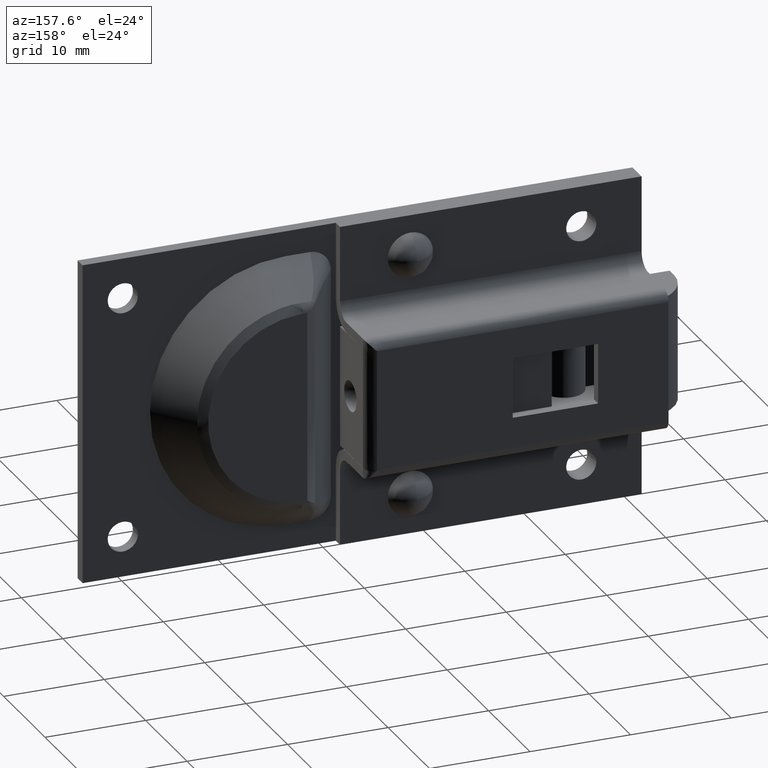
[diagram: clean part render]
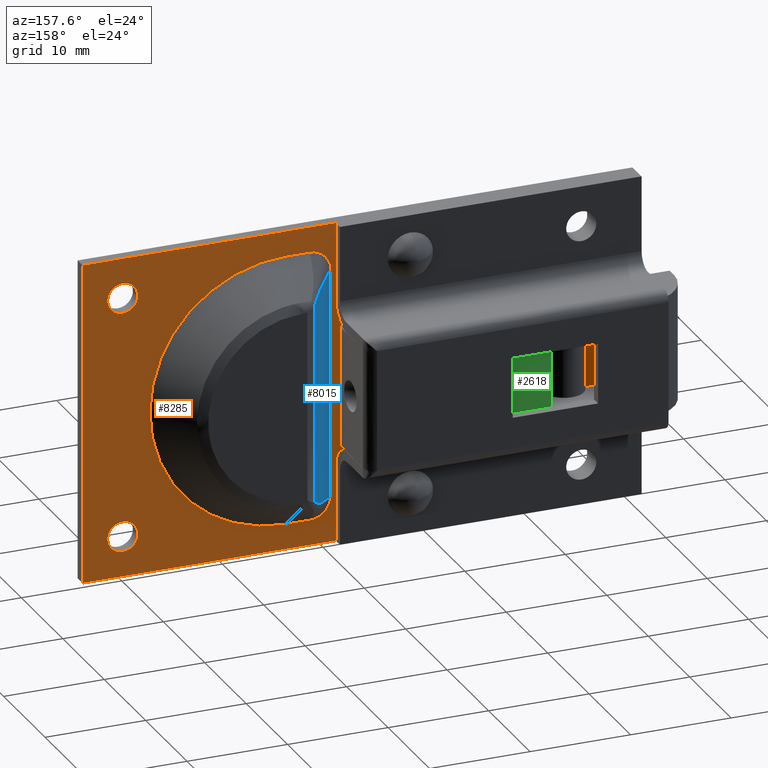
[diagram: same view with three faces highlighted in distinct colors, each labeled with its STEP entity id]
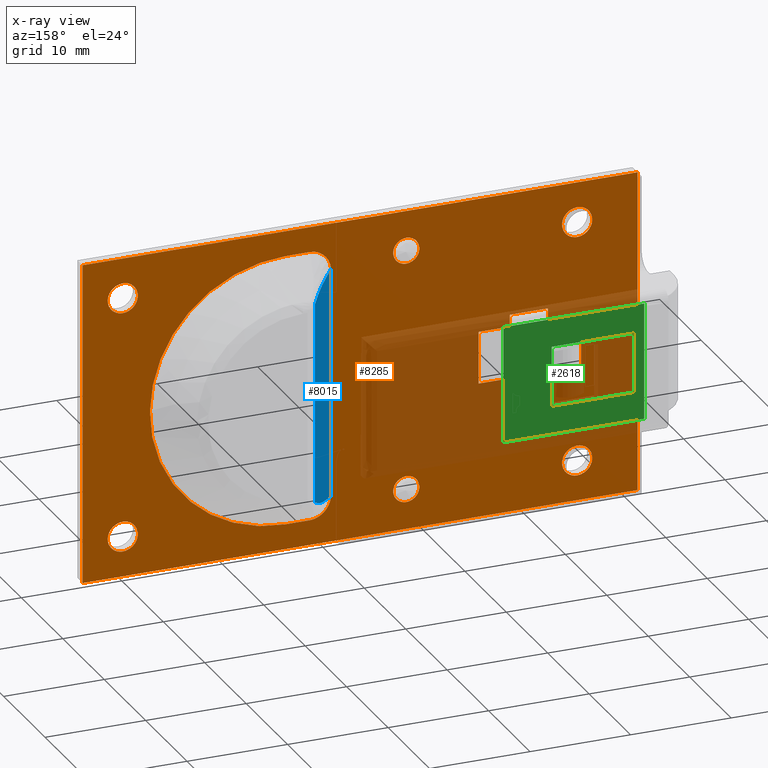
[diagram: x-ray of the same camera — body ghosted, the three highlighted faces saturated]
A machine part, auxiliary view with three faces highlighted in distinct colors.
The next image is the same camera in x-ray (body ghosted, the three faces saturated) — at least one of them is partly hidden behind the body in this view.
Their STEP definitions:

[orange] entity #8285 — the highlighted face is a freeform B-spline surface patch.
#4812=CARTESIAN_POINT('',(10.904065466151570,1.199997000000064,11.898003175494850));
#4813=VERTEX_POINT('',#4812);
#4819=CARTESIAN_POINT('',(12.200058000000000,1.199997000000064,13.300000000000001));
#4820=VERTEX_POINT('',#4819);
#4821=CARTESIAN_POINT('',(10.904065466151577,1.199997000000064,11.898003175494852));
#4822=CARTESIAN_POINT('',(10.900058000000003,1.199997000000064,11.948922860830809));
#4823=CARTESIAN_POINT('',(10.900058000000000,1.199997000000064,12.0));
#4824=CARTESIAN_POINT('',(10.900058000000001,1.199997000000064,13.299999999999997));
#4825=CARTESIAN_POINT('',(12.200058000000000,1.199997000000064,13.300000000000001));
#4833=(BOUNDED_CURVE()B_SPLINE_CURVE(2,(#4821,#4822,#4823,#4824,#4825),.UNSPECIFIED.,.F.,.U.)B_SPLINE_CURVE_WITH_KNOTS((3,2,3),(0.736331300617172,0.750000000000000,1.0),.UNSPECIFIED.)CURVE()GEOMETRIC_REPRESENTATION_ITEM()RATIONAL_B_SPLINE_CURVE((0.969723356139271,0.983986122563081,1.0,0.707106781186548,1.0))REPRESENTATION_ITEM(''));
#4834=EDGE_CURVE('',#4813,#4820,#4833,.T.);
#4836=CARTESIAN_POINT('',(13.496050533848431,1.199997000000064,12.101996824505150));
#4837=VERTEX_POINT('',#4836);
#4838=CARTESIAN_POINT('',(12.200058000000000,1.199997000000064,13.300000000000001));
#4839=CARTESIAN_POINT('',(13.401765639046010,1.199997000000064,13.299999999999999));
#4840=CARTESIAN_POINT('',(13.496050533848431,1.199997000000064,12.101996824505145));
#4848=(BOUNDED_CURVE()B_SPLINE_CURVE(2,(#4838,#4839,#4840),.UNSPECIFIED.,.F.,.U.)B_SPLINE_CURVE_WITH_KNOTS((3,3),(0.0,0.236331300617172),.UNSPECIFIED.)CURVE()GEOMETRIC_REPRESENTATION_ITEM()RATIONAL_B_SPLINE_CURVE((1.0,0.723120658623467,0.969723356139270))REPRESENTATION_ITEM(''));
#4849=EDGE_CURVE('',#4820,#4837,#4848,.T.);
#4895=CARTESIAN_POINT('',(12.200058000000000,1.199997000000064,10.699999999999999));
#4896=VERTEX_POINT('',#4895);
#4897=CARTESIAN_POINT('',(13.496050533848429,1.199997000000064,12.101996824505154));
#4898=CARTESIAN_POINT('',(13.500057999999996,1.199997000000064,12.051077139169189));
#4899=CARTESIAN_POINT('',(13.500057999999999,1.199997000000064,12.0));
#4900=CARTESIAN_POINT('',(13.500058000000001,1.199997000000064,10.700000000000001));
#4901=CARTESIAN_POINT('',(12.200058000000000,1.199997000000064,10.699999999999999));
#4909=(BOUNDED_CURVE()B_SPLINE_CURVE(2,(#4897,#4898,#4899,#4900,#4901),.UNSPECIFIED.,.F.,.U.)B_SPLINE_CURVE_WITH_KNOTS((3,2,3),(0.236331300617172,0.250000000000000,0.500000000000000),.UNSPECIFIED.)CURVE()GEOMETRIC_REPRESENTATION_ITEM()RATIONAL_B_SPLINE_CURVE((0.969723356139270,0.983986122563080,1.0,0.707106781186548,1.0))REPRESENTATION_ITEM(''));
#4910=EDGE_CURVE('',#4837,#4896,#4909,.T.);
#4912=CARTESIAN_POINT('',(12.200058000000000,1.199997000000064,10.699999999999999));
#4913=CARTESIAN_POINT('',(10.998350360953994,1.199997000000064,10.699999999999999));
#4914=CARTESIAN_POINT('',(10.904065466151577,1.199997000000064,11.898003175494852));
#4922=(BOUNDED_CURVE()B_SPLINE_CURVE(2,(#4912,#4913,#4914),.UNSPECIFIED.,.F.,.U.)B_SPLINE_CURVE_WITH_KNOTS((3,3),(0.500000000000000,0.736331300617172),.UNSPECIFIED.)CURVE()GEOMETRIC_REPRESENTATION_ITEM()RATIONAL_B_SPLINE_CURVE((1.0,0.723120658623468,0.969723356139270))REPRESENTATION_ITEM(''));
#4923=EDGE_CURVE('',#4896,#4813,#4922,.T.);
#4994=CARTESIAN_POINT('',(-6.295364000581541,1.199997000000064,11.882311356178880));
#4995=VERTEX_POINT('',#4994);
#5001=CARTESIAN_POINT('',(-4.799987999999900,1.199997000000064,13.500000000000000));
#5002=VERTEX_POINT('',#5001);
#5003=CARTESIAN_POINT('',(-6.295364000581541,1.199997000000064,11.882311356178885));
#5004=CARTESIAN_POINT('',(-6.299987999999901,1.199997000000064,11.941064839258079));
#5005=CARTESIAN_POINT('',(-6.299987999999900,1.199997000000064,12.0));
#5006=CARTESIAN_POINT('',(-6.299987999999900,1.199997000000064,13.500000000000000));
#5007=CARTESIAN_POINT('',(-4.799987999999900,1.199997000000064,13.500000000000000));
#5015=(BOUNDED_CURVE()B_SPLINE_CURVE(2,(#5003,#5004,#5005,#5006,#5007),.UNSPECIFIED.,.F.,.U.)B_SPLINE_CURVE_WITH_KNOTS((3,2,3),(0.736331300580183,0.750000000000000,1.0),.UNSPECIFIED.)CURVE()GEOMETRIC_REPRESENTATION_ITEM()RATIONAL_B_SPLINE_CURVE((0.969723356062077,0.983986122519745,1.0,0.707106781186548,1.0))REPRESENTATION_ITEM(''));
#5016=EDGE_CURVE('',#4995,#5002,#5015,.T.);
#5018=CARTESIAN_POINT('',(-3.304611999418259,1.199997000000064,12.117688643821120));
#5019=VERTEX_POINT('',#5018);
#5020=CARTESIAN_POINT('',(-4.799987999999900,1.199997000000064,13.500000000000000));
#5021=CARTESIAN_POINT('',(-3.413402262939234,1.199997000000064,13.500000000000000));
#5022=CARTESIAN_POINT('',(-3.304611999418259,1.199997000000064,12.117688643821115));
#5030=(BOUNDED_CURVE()B_SPLINE_CURVE(2,(#5020,#5021,#5022),.UNSPECIFIED.,.F.,.U.)B_SPLINE_CURVE_WITH_KNOTS((3,3),(0.0,0.236331300580183),.UNSPECIFIED.)CURVE()GEOMETRIC_REPRESENTATION_ITEM()RATIONAL_B_SPLINE_CURVE((1.0,0.723120658666803,0.969723356062077))REPRESENTATION_ITEM(''));
#5031=EDGE_CURVE('',#5002,#5019,#5030,.T.);
#5077=CARTESIAN_POINT('',(-4.799987999999900,1.199997000000064,10.500000000000000));
#5078=VERTEX_POINT('',#5077);
#5079=CARTESIAN_POINT('',(-3.304611999418259,1.199997000000064,12.117688643821115));
#5080=CARTESIAN_POINT('',(-3.299987999999900,1.199997000000064,12.058935160741921));
#5081=CARTESIAN_POINT('',(-3.299987999999900,1.199997000000064,12.0));
#5082=CARTESIAN_POINT('',(-3.299987999999900,1.199997000000064,10.500000000000002));
#5083=CARTESIAN_POINT('',(-4.799987999999900,1.199997000000064,10.500000000000000));
#5091=(BOUNDED_CURVE()B_SPLINE_CURVE(2,(#5079,#5080,#5081,#5082,#5083),.UNSPECIFIED.,.F.,.U.)B_SPLINE_CURVE_WITH_KNOTS((3,2,3),(0.236331300580183,0.250000000000000,0.500000000000000),.UNSPECIFIED.)CURVE()GEOMETRIC_REPRESENTATION_ITEM()RATIONAL_B_SPLINE_CURVE((0.969723356062077,0.983986122519745,1.0,0.707106781186548,1.0))REPRESENTATION_ITEM(''));
#5092=EDGE_CURVE('',#5019,#5078,#5091,.T.);
#5094=CARTESIAN_POINT('',(-4.799987999999900,1.199997000000064,10.500000000000000));
#5095=CARTESIAN_POINT('',(-6.186573737060571,1.199997000000064,10.499999999999998));
#5096=CARTESIAN_POINT('',(-6.295364000581541,1.199997000000064,11.882311356178880));
#5104=(BOUNDED_CURVE()B_SPLINE_CURVE(2,(#5094,#5095,#5096),.UNSPECIFIED.,.F.,.U.)B_SPLINE_CURVE_WITH_KNOTS((3,3),(0.500000000000000,0.736331300580184),.UNSPECIFIED.)CURVE()GEOMETRIC_REPRESENTATION_ITEM()RATIONAL_B_SPLINE_CURVE((1.0,0.723120658666802,0.969723356062078))REPRESENTATION_ITEM(''));
#5105=EDGE_CURVE('',#5078,#4995,#5104,.T.);
#5176=CARTESIAN_POINT('',(38.904632999418453,1.199997000000064,11.882311356178880));
#5177=VERTEX_POINT('',#5176);
#5183=CARTESIAN_POINT('',(40.400009000000097,1.199997000000064,13.500000000000000));
#5184=VERTEX_POINT('',#5183);
#5185=CARTESIAN_POINT('',(38.904632999418453,1.199997000000064,11.882311356178878));
#5186=CARTESIAN_POINT('',(38.900009000000104,1.199997000000064,11.941064839258081));
#5187=CARTESIAN_POINT('',(38.900009000000097,1.199997000000064,12.0));
#5188=CARTESIAN_POINT('',(38.900009000000097,1.199997000000064,13.500000000000000));
#5189=CARTESIAN_POINT('',(40.400009000000097,1.199997000000064,13.500000000000000));
#5197=(BOUNDED_CURVE()B_SPLINE_CURVE(2,(#5185,#5186,#5187,#5188,#5189),.UNSPECIFIED.,.F.,.U.)B_SPLINE_CURVE_WITH_KNOTS((3,2,3),(0.736331300580183,0.750000000000000,1.0),.UNSPECIFIED.)CURVE()GEOMETRIC_REPRESENTATION_ITEM()RATIONAL_B_SPLINE_CURVE((0.969723356062077,0.983986122519745,1.0,0.707106781186548,1.0))REPRESENTATION_ITEM(''));
#5198=EDGE_CURVE('',#5177,#5184,#5197,.T.);
#5200=CARTESIAN_POINT('',(41.895385000581740,1.199997000000064,12.117688643821120));
#5201=VERTEX_POINT('',#5200);
#5202=CARTESIAN_POINT('',(40.400009000000097,1.199997000000064,13.500000000000000));
#5203=CARTESIAN_POINT('',(41.786594737060767,1.199997000000064,13.500000000000000));
#5204=CARTESIAN_POINT('',(41.895385000581747,1.199997000000064,12.117688643821122));
#5212=(BOUNDED_CURVE()B_SPLINE_CURVE(2,(#5202,#5203,#5204),.UNSPECIFIED.,.F.,.U.)B_SPLINE_CURVE_WITH_KNOTS((3,3),(0.0,0.236331300580183),.UNSPECIFIED.)CURVE()GEOMETRIC_REPRESENTATION_ITEM()RATIONAL_B_SPLINE_CURVE((1.0,0.723120658666802,0.969723356062077))REPRESENTATION_ITEM(''));
#5213=EDGE_CURVE('',#5184,#5201,#5212,.T.);
#5259=CARTESIAN_POINT('',(40.400009000000097,1.199997000000064,10.500000000000000));
#5260=VERTEX_POINT('',#5259);
#5261=CARTESIAN_POINT('',(41.895385000581747,1.199997000000064,12.117688643821122));
#5262=CARTESIAN_POINT('',(41.900009000000097,1.199997000000064,12.058935160741919));
#5263=CARTESIAN_POINT('',(41.900009000000097,1.199997000000064,12.0));
#5264=CARTESIAN_POINT('',(41.900009000000097,1.199997000000064,10.500000000000002));
#5265=CARTESIAN_POINT('',(40.400009000000097,1.199997000000064,10.500000000000000));
#5273=(BOUNDED_CURVE()B_SPLINE_CURVE(2,(#5261,#5262,#5263,#5264,#5265),.UNSPECIFIED.,.F.,.U.)B_SPLINE_CURVE_WITH_KNOTS((3,2,3),(0.236331300580183,0.250000000000000,0.500000000000000),.UNSPECIFIED.)CURVE()GEOMETRIC_REPRESENTATION_ITEM()RATIONAL_B_SPLINE_CURVE((0.969723356062077,0.983986122519745,1.0,0.707106781186548,1.0))REPRESENTATION_ITEM(''));
#5274=EDGE_CURVE('',#5201,#5260,#5273,.T.);
#5276=CARTESIAN_POINT('',(40.400009000000097,1.199997000000064,10.500000000000000));
#5277=CARTESIAN_POINT('',(39.013423262939419,1.199997000000064,10.499999999999998));
#5278=CARTESIAN_POINT('',(38.904632999418453,1.199997000000064,11.882311356178880));
#5286=(BOUNDED_CURVE()B_SPLINE_CURVE(2,(#5276,#5277,#5278),.UNSPECIFIED.,.F.,.U.)B_SPLINE_CURVE_WITH_KNOTS((3,3),(0.500000000000000,0.736331300580184),.UNSPECIFIED.)CURVE()GEOMETRIC_REPRESENTATION_ITEM()RATIONAL_B_SPLINE_CURVE((1.0,0.723120658666802,0.969723356062078))REPRESENTATION_ITEM(''));
#5287=EDGE_CURVE('',#5260,#5177,#5286,.T.);
#5358=CARTESIAN_POINT('',(38.904632999418453,1.199997000000064,-12.117688643821120));
#5359=VERTEX_POINT('',#5358);
#5365=CARTESIAN_POINT('',(40.400009000000097,1.199997000000064,-10.500000000000000));
#5366=VERTEX_POINT('',#5365);
#5367=CARTESIAN_POINT('',(38.904632999418453,1.199997000000064,-12.117688643821117));
#5368=CARTESIAN_POINT('',(38.900009000000104,1.199997000000064,-12.058935160741921));
#5369=CARTESIAN_POINT('',(38.900009000000097,1.199997000000064,-12.0));
#5370=CARTESIAN_POINT('',(38.900009000000097,1.199997000000064,-10.500000000000002));
#5371=CARTESIAN_POINT('',(40.400009000000097,1.199997000000064,-10.500000000000000));
#5379=(BOUNDED_CURVE()B_SPLINE_CURVE(2,(#5367,#5368,#5369,#5370,#5371),.UNSPECIFIED.,.F.,.U.)B_SPLINE_CURVE_WITH_KNOTS((3,2,3),(0.736331300580183,0.750000000000000,1.0),.UNSPECIFIED.)CURVE()GEOMETRIC_REPRESENTATION_ITEM()RATIONAL_B_SPLINE_CURVE((0.969723356062077,0.983986122519745,1.0,0.707106781186548,1.0))REPRESENTATION_ITEM(''));
#5380=EDGE_CURVE('',#5359,#5366,#5379,.T.);
#5382=CARTESIAN_POINT('',(41.895385000581740,1.199997000000064,-11.882311356178880));
#5383=VERTEX_POINT('',#5382);
#5384=CARTESIAN_POINT('',(40.400009000000097,1.199997000000064,-10.500000000000000));
#5385=CARTESIAN_POINT('',(41.786594737060760,1.199997000000064,-10.500000000000000));
#5386=CARTESIAN_POINT('',(41.895385000581740,1.199997000000064,-11.882311356178885));
#5394=(BOUNDED_CURVE()B_SPLINE_CURVE(2,(#5384,#5385,#5386),.UNSPECIFIED.,.F.,.U.)B_SPLINE_CURVE_WITH_KNOTS((3,3),(0.0,0.236331300580183),.UNSPECIFIED.)CURVE()GEOMETRIC_REPRESENTATION_ITEM()RATIONAL_B_SPLINE_CURVE((1.0,0.723120658666803,0.969723356062076))REPRESENTATION_ITEM(''));
#5395=EDGE_CURVE('',#5366,#5383,#5394,.T.);
#5441=CARTESIAN_POINT('',(40.400009000000097,1.199997000000064,-13.500000000000000));
#5442=VERTEX_POINT('',#5441);
#5443=CARTESIAN_POINT('',(41.895385000581740,1.199997000000064,-11.882311356178883));
#5444=CARTESIAN_POINT('',(41.900009000000090,1.199997000000064,-11.941064839258084));
#5445=CARTESIAN_POINT('',(41.900009000000097,1.199997000000064,-12.0));
#5446=CARTESIAN_POINT('',(41.900009000000097,1.199997000000064,-13.500000000000000));
#5447=CARTESIAN_POINT('',(40.400009000000097,1.199997000000064,-13.500000000000000));
#5455=(BOUNDED_CURVE()B_SPLINE_CURVE(2,(#5443,#5444,#5445,#5446,#5447),.UNSPECIFIED.,.F.,.U.)B_SPLINE_CURVE_WITH_KNOTS((3,2,3),(0.236331300580183,0.250000000000000,0.500000000000000),.UNSPECIFIED.)CURVE()GEOMETRIC_REPRESENTATION_ITEM()RATIONAL_B_SPLINE_CURVE((0.969723356062076,0.983986122519745,1.0,0.707106781186548,1.0))REPRESENTATION_ITEM(''));
#5456=EDGE_CURVE('',#5383,#5442,#5455,.T.);
#5458=CARTESIAN_POINT('',(40.400009000000097,1.199997000000064,-13.500000000000000));
#5459=CARTESIAN_POINT('',(39.013423262939419,1.199997000000064,-13.499999999999998));
#5460=CARTESIAN_POINT('',(38.904632999418453,1.199997000000064,-12.117688643821118));
#5468=(BOUNDED_CURVE()B_SPLINE_CURVE(2,(#5458,#5459,#5460),.UNSPECIFIED.,.F.,.U.)B_SPLINE_CURVE_WITH_KNOTS((3,3),(0.500000000000000,0.736331300580184),.UNSPECIFIED.)CURVE()GEOMETRIC_REPRESENTATION_ITEM()RATIONAL_B_SPLINE_CURVE((1.0,0.723120658666802,0.969723356062078))REPRESENTATION_ITEM(''));
#5469=EDGE_CURVE('',#5442,#5359,#5468,.T.);
#5540=CARTESIAN_POINT('',(10.904065466151570,1.199997000000064,-12.101996824505150));
#5541=VERTEX_POINT('',#5540);
#5547=CARTESIAN_POINT('',(12.200058000000000,1.199997000000064,-10.699999999999999));
#5548=VERTEX_POINT('',#5547);
#5549=CARTESIAN_POINT('',(10.904065466151573,1.199997000000064,-12.101996824505155));
#5550=CARTESIAN_POINT('',(10.900057999999998,1.199997000000064,-12.051077139169191));
#5551=CARTESIAN_POINT('',(10.900058000000000,1.199997000000064,-12.0));
#5552=CARTESIAN_POINT('',(10.900058000000001,1.199997000000064,-10.700000000000001));
#5553=CARTESIAN_POINT('',(12.200058000000000,1.199997000000064,-10.699999999999999));
#5561=(BOUNDED_CURVE()B_SPLINE_CURVE(2,(#5549,#5550,#5551,#5552,#5553),.UNSPECIFIED.,.F.,.U.)B_SPLINE_CURVE_WITH_KNOTS((3,2,3),(0.736331300617172,0.750000000000000,1.0),.UNSPECIFIED.)CURVE()GEOMETRIC_REPRESENTATION_ITEM()RATIONAL_B_SPLINE_CURVE((0.969723356139270,0.983986122563080,1.0,0.707106781186548,1.0))REPRESENTATION_ITEM(''));
#5562=EDGE_CURVE('',#5541,#5548,#5561,.T.);
#5564=CARTESIAN_POINT('',(13.496050533848431,1.199997000000064,-11.898003175494850));
#5565=VERTEX_POINT('',#5564);
#5566=CARTESIAN_POINT('',(12.200058000000000,1.199997000000064,-10.699999999999999));
#5567=CARTESIAN_POINT('',(13.401765639046012,1.199997000000064,-10.700000000000001));
#5568=CARTESIAN_POINT('',(13.496050533848432,1.199997000000064,-11.898003175494852));
#5576=(BOUNDED_CURVE()B_SPLINE_CURVE(2,(#5566,#5567,#5568),.UNSPECIFIED.,.F.,.U.)B_SPLINE_CURVE_WITH_KNOTS((3,3),(0.0,0.236331300617172),.UNSPECIFIED.)CURVE()GEOMETRIC_REPRESENTATION_ITEM()RATIONAL_B_SPLINE_CURVE((1.0,0.723120658623467,0.969723356139271))REPRESENTATION_ITEM(''));
#5577=EDGE_CURVE('',#5548,#5565,#5576,.T.);
#5623=CARTESIAN_POINT('',(12.200058000000000,1.199997000000064,-13.300000000000001));
#5624=VERTEX_POINT('',#5623);
#5625=CARTESIAN_POINT('',(13.496050533848425,1.199997000000064,-11.898003175494855));
#5626=CARTESIAN_POINT('',(13.500058000000005,1.199997000000064,-11.948922860830811));
#5627=CARTESIAN_POINT('',(13.500057999999999,1.199997000000064,-12.0));
#5628=CARTESIAN_POINT('',(13.500058000000001,1.199997000000064,-13.299999999999997));
#5629=CARTESIAN_POINT('',(12.200058000000000,1.199997000000064,-13.300000000000001));
#5637=(BOUNDED_CURVE()B_SPLINE_CURVE(2,(#5625,#5626,#5627,#5628,#5629),.UNSPECIFIED.,.F.,.U.)B_SPLINE_CURVE_WITH_KNOTS((3,2,3),(0.236331300617172,0.250000000000000,0.500000000000000),.UNSPECIFIED.)CURVE()GEOMETRIC_REPRESENTATION_ITEM()RATIONAL_B_SPLINE_CURVE((0.969723356139271,0.983986122563080,1.0,0.707106781186548,1.0))REPRESENTATION_ITEM(''));
#5638=EDGE_CURVE('',#5565,#5624,#5637,.T.);
#5640=CARTESIAN_POINT('',(12.200058000000000,1.199997000000064,-13.300000000000001));
#5641=CARTESIAN_POINT('',(10.998350360953994,1.199997000000064,-13.299999999999999));
#5642=CARTESIAN_POINT('',(10.904065466151577,1.199997000000064,-12.101996824505148));
#5650=(BOUNDED_CURVE()B_SPLINE_CURVE(2,(#5640,#5641,#5642),.UNSPECIFIED.,.F.,.U.)B_SPLINE_CURVE_WITH_KNOTS((3,3),(0.500000000000000,0.736331300617172),.UNSPECIFIED.)CURVE()GEOMETRIC_REPRESENTATION_ITEM()RATIONAL_B_SPLINE_CURVE((1.0,0.723120658623468,0.969723356139270))REPRESENTATION_ITEM(''));
#5651=EDGE_CURVE('',#5624,#5541,#5650,.T.);
#5722=CARTESIAN_POINT('',(-6.295364000581541,1.199997000000064,-12.117688643821120));
#5723=VERTEX_POINT('',#5722);
#5729=CARTESIAN_POINT('',(-4.799987999999900,1.199997000000064,-10.500000000000000));
#5730=VERTEX_POINT('',#5729);
#5731=CARTESIAN_POINT('',(-6.295364000581541,1.199997000000064,-12.117688643821115));
#5732=CARTESIAN_POINT('',(-6.299987999999900,1.199997000000064,-12.058935160741916));
#5733=CARTESIAN_POINT('',(-6.299987999999900,1.199997000000064,-12.0));
#5734=CARTESIAN_POINT('',(-6.299987999999900,1.199997000000064,-10.500000000000002));
#5735=CARTESIAN_POINT('',(-4.799987999999900,1.199997000000064,-10.500000000000000));
#5743=(BOUNDED_CURVE()B_SPLINE_CURVE(2,(#5731,#5732,#5733,#5734,#5735),.UNSPECIFIED.,.F.,.U.)B_SPLINE_CURVE_WITH_KNOTS((3,2,3),(0.736331300580183,0.750000000000000,1.0),.UNSPECIFIED.)CURVE()GEOMETRIC_REPRESENTATION_ITEM()RATIONAL_B_SPLINE_CURVE((0.969723356062078,0.983986122519745,1.0,0.707106781186548,1.0))REPRESENTATION_ITEM(''));
#5744=EDGE_CURVE('',#5723,#5730,#5743,.T.);
#5746=CARTESIAN_POINT('',(-3.304611999418259,1.199997000000064,-11.882311356178880));
#5747=VERTEX_POINT('',#5746);
#5748=CARTESIAN_POINT('',(-4.799987999999900,1.199997000000064,-10.500000000000000));
#5749=CARTESIAN_POINT('',(-3.413402262939234,1.199997000000064,-10.500000000000000));
#5750=CARTESIAN_POINT('',(-3.304611999418258,1.199997000000064,-11.882311356178885));
#5758=(BOUNDED_CURVE()B_SPLINE_CURVE(2,(#5748,#5749,#5750),.UNSPECIFIED.,.F.,.U.)B_SPLINE_CURVE_WITH_KNOTS((3,3),(0.0,0.236331300580183),.UNSPECIFIED.)CURVE()GEOMETRIC_REPRESENTATION_ITEM()RATIONAL_B_SPLINE_CURVE((1.0,0.723120658666802,0.969723356062077))REPRESENTATION_ITEM(''));
#5759=EDGE_CURVE('',#5730,#5747,#5758,.T.);
#5805=CARTESIAN_POINT('',(-4.799987999999900,1.199997000000064,-13.500000000000000));
#5806=VERTEX_POINT('',#5805);
#5807=CARTESIAN_POINT('',(-3.304611999418258,1.199997000000064,-11.882311356178885));
#5808=CARTESIAN_POINT('',(-3.299987999999900,1.199997000000064,-11.941064839258079));
#5809=CARTESIAN_POINT('',(-3.299987999999900,1.199997000000064,-12.0));
#5810=CARTESIAN_POINT('',(-3.299987999999900,1.199997000000064,-13.500000000000000));
#5811=CARTESIAN_POINT('',(-4.799987999999900,1.199997000000064,-13.500000000000000));
#5819=(BOUNDED_CURVE()B_SPLINE_CURVE(2,(#5807,#5808,#5809,#5810,#5811),.UNSPECIFIED.,.F.,.U.)B_SPLINE_CURVE_WITH_KNOTS((3,2,3),(0.236331300580183,0.250000000000000,0.500000000000000),.UNSPECIFIED.)CURVE()GEOMETRIC_REPRESENTATION_ITEM()RATIONAL_B_SPLINE_CURVE((0.969723356062077,0.983986122519745,1.0,0.707106781186548,1.0))REPRESENTATION_ITEM(''));
#5820=EDGE_CURVE('',#5747,#5806,#5819,.T.);
#5822=CARTESIAN_POINT('',(-4.799987999999900,1.199997000000064,-13.500000000000000));
#5823=CARTESIAN_POINT('',(-6.186573737060571,1.199997000000064,-13.499999999999998));
#5824=CARTESIAN_POINT('',(-6.295364000581541,1.199997000000064,-12.117688643821118));
#5832=(BOUNDED_CURVE()B_SPLINE_CURVE(2,(#5822,#5823,#5824),.UNSPECIFIED.,.F.,.U.)B_SPLINE_CURVE_WITH_KNOTS((3,3),(0.500000000000000,0.736331300580184),.UNSPECIFIED.)CURVE()GEOMETRIC_REPRESENTATION_ITEM()RATIONAL_B_SPLINE_CURVE((1.0,0.723120658666802,0.969723356062078))REPRESENTATION_ITEM(''));
#5833=EDGE_CURVE('',#5806,#5723,#5832,.T.);
#6225=CARTESIAN_POINT('',(1.900000000000000,1.199997000000110,3.799998000000000));
#6226=VERTEX_POINT('',#6225);
#6227=CARTESIAN_POINT('',(-1.900000000000000,1.199997000000110,3.799998000000000));
#6228=VERTEX_POINT('',#6227);
#6229=CARTESIAN_POINT('',(1.900000000000000,1.199997000000110,3.799998000000000));
#6230=CARTESIAN_POINT('',(-1.900000000000000,1.199997000000110,3.799998000000000));
#6231=QUASI_UNIFORM_CURVE('',1,(#6229,#6230),.UNSPECIFIED.,.F.,.U.);
#6232=EDGE_CURVE('',#6226,#6228,#6231,.T.);
#6275=CARTESIAN_POINT('',(1.900000000000000,1.199997000000064,2.600000000000000));
#6276=VERTEX_POINT('',#6275);
#6277=CARTESIAN_POINT('',(1.900000000000000,1.199997000000110,3.799998000000000));
#6278=CARTESIAN_POINT('',(1.900000000000000,1.199997000000064,2.600000000000000));
#6279=QUASI_UNIFORM_CURVE('',1,(#6277,#6278),.UNSPECIFIED.,.F.,.U.);
#6280=EDGE_CURVE('',#6226,#6276,#6279,.T.);
#6304=CARTESIAN_POINT('',(-1.900000000000000,1.199997000000110,2.599998000000000));
#6305=VERTEX_POINT('',#6304);
#6311=CARTESIAN_POINT('',(-1.900000000000000,1.199997000000110,2.599998000000000));
#6312=CARTESIAN_POINT('',(-1.900000000000000,1.199997000000110,3.799998000000000));
#6313=QUASI_UNIFORM_CURVE('',1,(#6311,#6312),.UNSPECIFIED.,.F.,.U.);
#6314=EDGE_CURVE('',#6305,#6228,#6313,.T.);
#6368=CARTESIAN_POINT('',(-1.900000000000000,1.199997000000110,-3.799998000000000));
#6369=VERTEX_POINT('',#6368);
#6370=CARTESIAN_POINT('',(1.900000000000000,1.199997000000110,-3.799998000000000));
#6371=VERTEX_POINT('',#6370);
#6372=CARTESIAN_POINT('',(-1.900000000000000,1.199997000000110,-3.799998000000000));
#6373=CARTESIAN_POINT('',(1.900000000000000,1.199997000000110,-3.799998000000000));
#6374=QUASI_UNIFORM_CURVE('',1,(#6372,#6373),.UNSPECIFIED.,.F.,.U.);
#6375=EDGE_CURVE('',#6369,#6371,#6374,.T.);
#6417=CARTESIAN_POINT('',(1.900000000000000,1.199997000000110,-2.599998000000000));
#6418=VERTEX_POINT('',#6417);
#6426=CARTESIAN_POINT('',(1.900000000000000,1.199997000000110,-2.599998000000000));
#6427=CARTESIAN_POINT('',(1.900000000000000,1.199997000000110,-3.799998000000000));
#6428=QUASI_UNIFORM_CURVE('',1,(#6426,#6427),.UNSPECIFIED.,.F.,.U.);
#6429=EDGE_CURVE('',#6418,#6371,#6428,.T.);
#6446=CARTESIAN_POINT('',(-1.900000000000000,1.199997000000064,-2.600000000000000));
#6447=VERTEX_POINT('',#6446);
#6448=CARTESIAN_POINT('',(-1.900000000000000,1.199997000000110,-3.799998000000000));
#6449=CARTESIAN_POINT('',(-1.900000000000000,1.199997000000064,-2.600000000000000));
#6450=QUASI_UNIFORM_CURVE('',1,(#6448,#6449),.UNSPECIFIED.,.F.,.U.);
#6451=EDGE_CURVE('',#6369,#6447,#6450,.T.);
#7520=CARTESIAN_POINT('',(19.700012000000051,1.199997000000110,-11.440580385992780));
#7521=VERTEX_POINT('',#7520);
#7522=CARTESIAN_POINT('',(21.759431614007251,1.199997000000110,-13.500000000000000));
#7523=VERTEX_POINT('',#7522);
#7524=CARTESIAN_POINT('',(19.700012000000051,1.199997000000108,-11.440580385992780));
#7525=CARTESIAN_POINT('',(19.700012000000051,1.199997000000108,-11.575605431549240));
#7526=CARTESIAN_POINT('',(19.715662663377859,1.199997000000111,-11.708001178302350));
#7527=CARTESIAN_POINT('',(19.759490150173619,1.199997000000110,-11.903175764263439));
#7528=CARTESIAN_POINT('',(19.777532146188872,1.199997000000109,-11.967657246287180));
#7529=CARTESIAN_POINT('',(19.820377340745839,1.199997000000109,-12.095484333772569));
#7530=CARTESIAN_POINT('',(19.844861296513692,1.199996999999939,-12.157877100398091));
#7531=CARTESIAN_POINT('',(19.926802124962592,1.199996999999939,-12.340627416411710));
#7532=CARTESIAN_POINT('',(19.992686385893428,1.199997000000110,-12.456686789667989));
#7533=CARTESIAN_POINT('',(20.107810492605299,1.199997000000110,-12.622416123133750));
#7534=CARTESIAN_POINT('',(20.148645520001541,1.199997000000110,-12.675819943741169));
#7535=CARTESIAN_POINT('',(20.234333006093109,1.199997000000110,-12.778150126372150));
#7536=CARTESIAN_POINT('',(20.324253330653701,1.199997000000110,-12.876313705233560));
#7537=CARTESIAN_POINT('',(20.422516705463789,1.199997000000110,-12.966264784403830));
#7538=CARTESIAN_POINT('',(20.525031268941682,1.199997000000110,-13.052031196746370));
#7539=CARTESIAN_POINT('',(20.578700567792790,1.199997000000097,-13.093011535202891));
#7540=CARTESIAN_POINT('',(20.743994605261101,1.199997000000097,-13.207704180453510));
#7541=CARTESIAN_POINT('',(20.859571888820390,1.199997000000110,-13.273252391687080));
#7542=CARTESIAN_POINT('',(21.041226785162031,1.199997000000110,-13.354764121027831));
#7543=CARTESIAN_POINT('',(21.103170868909721,1.199997000000103,-13.379110712442710));
#7544=CARTESIAN_POINT('',(21.230034546035380,1.199997000000104,-13.421769362758241));
#7545=CARTESIAN_POINT('',(21.295238562331971,1.199997000000110,-13.440117935868050));
#7546=CARTESIAN_POINT('',(21.491562544888030,1.199997000000110,-13.484337724275919));
#7547=CARTESIAN_POINT('',(21.624393102487868,1.199997000000110,-13.500000000000000));
#7548=CARTESIAN_POINT('',(21.759431614007251,1.199997000000110,-13.500000000000000));
#7549=B_SPLINE_CURVE_WITH_KNOTS('',3,(#7524,#7525,#7526,#7527,#7528,#7529,#7530,#7531,#7532,#7533,#7534,#7535,#7536,#7537,#7538,#7539,#7540,#7541,#7542,#7543,#7544,#7545,#7546,#7547,#7548),.UNSPECIFIED.,.F.,.U.,(4,2,2,2,2,2,1,2,2,2,2,2,4),(0.0,0.125000000000002,0.187500000000003,0.250000000000003,0.375000000000005,0.437500000000006,0.500000000000006,0.562500000000007,0.625000000000008,0.750000000000007,0.812500000000006,0.875000000000004,1.0),.UNSPECIFIED.);
#7550=EDGE_CURVE('',#7521,#7523,#7549,.T.);
#7642=CARTESIAN_POINT('',(19.700012000000051,1.199997000000110,11.440580385992780));
#7643=VERTEX_POINT('',#7642);
#7651=CARTESIAN_POINT('',(21.759431614007202,1.199997000000110,13.500000000000000));
#7652=VERTEX_POINT('',#7651);
#7653=CARTESIAN_POINT('',(21.759431614007202,1.199997000000110,13.500000000000000));
#7654=CARTESIAN_POINT('',(21.624406568450748,1.199997000000110,13.500000000000000));
#7655=CARTESIAN_POINT('',(21.492010821697640,1.199997000000111,13.484349336622140));
#7656=CARTESIAN_POINT('',(21.296836235736549,1.199997000000110,13.440521849826370));
#7657=CARTESIAN_POINT('',(21.232354753712809,1.199997000000110,13.422479853811129));
#7658=CARTESIAN_POINT('',(21.104527666227419,1.199997000000110,13.379634659254160));
#7659=CARTESIAN_POINT('',(21.042134899601908,1.199996999999939,13.355150703486320));
#7660=CARTESIAN_POINT('',(20.859384583588302,1.199996999999940,13.273209875037400));
#7661=CARTESIAN_POINT('',(20.743325210331999,1.199997000000110,13.207325614106569));
#7662=CARTESIAN_POINT('',(20.577595876866251,1.199997000000110,13.092201507394710));
#7663=CARTESIAN_POINT('',(20.524192056258840,1.199997000000110,13.051366479998460));
#7664=CARTESIAN_POINT('',(20.421861873627861,1.199997000000110,12.965678993906900));
#7665=CARTESIAN_POINT('',(20.323698294766459,1.199997000000110,12.875758669346320));
#7666=CARTESIAN_POINT('',(20.233747215596189,1.199997000000110,12.777495294536219));
#7667=CARTESIAN_POINT('',(20.147980803253631,1.199997000000110,12.674980731058319));
#7668=CARTESIAN_POINT('',(20.107000464797132,1.199997000000097,12.621311432207230));
#7669=CARTESIAN_POINT('',(19.992307819546522,1.199997000000097,12.456017394738931));
#7670=CARTESIAN_POINT('',(19.926759608312938,1.199997000000111,12.340440111179641));
#7671=CARTESIAN_POINT('',(19.845247878972181,1.199997000000111,12.158785214838000));
#7672=CARTESIAN_POINT('',(19.820901287557302,1.199997000000102,12.096841131090310));
#7673=CARTESIAN_POINT('',(19.778242637241782,1.199997000000102,11.969977453964651));
#7674=CARTESIAN_POINT('',(19.759894064131970,1.199997000000111,11.904773437668061));
#7675=CARTESIAN_POINT('',(19.715674275724080,1.199997000000111,11.708449455112010));
#7676=CARTESIAN_POINT('',(19.700012000000040,1.199997000000106,11.575618897512159));
#7677=CARTESIAN_POINT('',(19.700012000000051,1.199997000000106,11.440580385992780));
#7678=B_SPLINE_CURVE_WITH_KNOTS('',3,(#7653,#7654,#7655,#7656,#7657,#7658,#7659,#7660,#7661,#7662,#7663,#7664,#7665,#7666,#7667,#7668,#7669,#7670,#7671,#7672,#7673,#7674,#7675,#7676,#7677),.UNSPECIFIED.,.F.,.U.,(4,2,2,2,2,2,1,2,2,2,2,2,4),(0.0,0.125000000000000,0.187500000000000,0.250000000000000,0.375000000000000,0.437499999999999,0.499999999999999,0.562499999999998,0.624999999999997,0.749999999999998,0.812499999999998,0.874999999999999,1.0),.UNSPECIFIED.);
#7679=EDGE_CURVE('',#7652,#7643,#7678,.T.);
#7953=CARTESIAN_POINT('',(24.200012000000001,1.199997000000108,-13.500000000000000));
#7954=VERTEX_POINT('',#7953);
#7961=CARTESIAN_POINT('',(24.200012000000001,1.199997000000108,13.500000000000000));
#7962=VERTEX_POINT('',#7961);
#7968=CARTESIAN_POINT('',(24.200012000000001,1.199997000000110,-13.500000000000000));
#7969=CARTESIAN_POINT('',(37.700012000000001,1.199997000000110,-13.500000000000000));
#7970=CARTESIAN_POINT('',(37.700012000000001,1.199997000000110,0.0));
#7971=CARTESIAN_POINT('',(37.700012000000001,1.199997000000110,13.500000000000000));
#7972=CARTESIAN_POINT('',(24.200012000000001,1.199997000000110,13.500000000000000));
#7980=(BOUNDED_CURVE()B_SPLINE_CURVE(2,(#7968,#7969,#7970,#7971,#7972),.UNSPECIFIED.,.F.,.U.)B_SPLINE_CURVE_WITH_KNOTS((3,2,3),(0.0,0.500000000000000,1.0),.UNSPECIFIED.)CURVE()GEOMETRIC_REPRESENTATION_ITEM()RATIONAL_B_SPLINE_CURVE((1.0,0.707106781186548,1.0,0.707106781186548,1.0))REPRESENTATION_ITEM(''));
#7981=EDGE_CURVE('',#7954,#7962,#7980,.T.);
#8003=CARTESIAN_POINT('',(19.700012000000051,1.199997000000110,11.440580385992780));
#8004=CARTESIAN_POINT('',(19.700012000000051,1.199997000000110,-11.440580385992780));
#8005=QUASI_UNIFORM_CURVE('',1,(#8003,#8004),.UNSPECIFIED.,.F.,.U.);
#8006=EDGE_CURVE('',#7643,#7521,#8005,.T.);
#8024=CARTESIAN_POINT('',(24.200012000000001,1.199997000000108,13.500000000000000));
#8025=CARTESIAN_POINT('',(21.759431614007202,1.199997000000110,13.500000000000000));
#8026=QUASI_UNIFORM_CURVE('',1,(#8024,#8025),.UNSPECIFIED.,.F.,.U.);
#8027=EDGE_CURVE('',#7962,#7652,#8026,.T.);
#8038=CARTESIAN_POINT('',(21.759431614007251,1.199997000000110,-13.500000000000000));
#8039=CARTESIAN_POINT('',(24.200012000000001,1.199997000000108,-13.500000000000000));
#8040=QUASI_UNIFORM_CURVE('',1,(#8038,#8039),.UNSPECIFIED.,.F.,.U.);
#8041=EDGE_CURVE('',#7523,#7954,#8040,.T.);
#8160=CARTESIAN_POINT('',(-13.557227743161601,1.199997000000110,17.598399937977788));
#8161=CARTESIAN_POINT('',(47.157250223741087,1.199997000000110,17.598399937977788));
#8162=CARTESIAN_POINT('',(-13.557227743161601,1.199997000000110,-17.598400796284679));
#8163=CARTESIAN_POINT('',(47.157250223741087,1.199997000000110,-17.598400796284679));
#8164=B_SPLINE_SURFACE_WITH_KNOTS('',1,1,((#8160,#8162),(#8161,#8163)),.UNSPECIFIED.,.F.,.F.,.U.,(2,2),(2,2),(0.0,60.714477966902699),(0.0,35.196800734262467),.UNSPECIFIED.);
#8165=CARTESIAN_POINT('',(44.400009000000097,1.199997000000064,16.0));
#8166=VERTEX_POINT('',#8165);
#8167=CARTESIAN_POINT('',(44.400009000000097,1.199997000000064,-16.0));
#8168=VERTEX_POINT('',#8167);
#8169=CARTESIAN_POINT('',(44.400009000000097,1.199997000000064,16.0));
#8170=CARTESIAN_POINT('',(44.400009000000097,1.199997000000064,-16.0));
#8171=QUASI_UNIFORM_CURVE('',1,(#8169,#8170),.UNSPECIFIED.,.F.,.U.);
#8172=EDGE_CURVE('',#8166,#8168,#8171,.T.);
#8173=ORIENTED_EDGE('',*,*,#8172,.T.);
#8174=CARTESIAN_POINT('',(-10.799987999999900,1.199997000000064,-16.0));
#8175=VERTEX_POINT('',#8174);
#8176=CARTESIAN_POINT('',(44.400009000000097,1.199997000000064,-16.0));
#8177=CARTESIAN_POINT('',(-10.799987999999900,1.199997000000064,-16.0));
#8178=QUASI_UNIFORM_CURVE('',1,(#8176,#8177),.UNSPECIFIED.,.F.,.U.);
#8179=EDGE_CURVE('',#8168,#8175,#8178,.T.);
#8180=ORIENTED_EDGE('',*,*,#8179,.T.);
#8181=CARTESIAN_POINT('',(-10.799987999999900,1.199997000000064,16.0));
#8182=VERTEX_POINT('',#8181);
#8183=CARTESIAN_POINT('',(-10.799987999999900,1.199997000000064,-16.0));
#8184=CARTESIAN_POINT('',(-10.799987999999900,1.199997000000064,16.0));
#8185=QUASI_UNIFORM_CURVE('',1,(#8183,#8184),.UNSPECIFIED.,.F.,.U.);
#8186=EDGE_CURVE('',#8175,#8182,#8185,.T.);
#8187=ORIENTED_EDGE('',*,*,#8186,.T.);
#8188=CARTESIAN_POINT('',(-10.799987999999900,1.199997000000064,16.0));
#8189=CARTESIAN_POINT('',(44.400009000000097,1.199997000000064,16.0));
#8190=QUASI_UNIFORM_CURVE('',1,(#8188,#8189),.UNSPECIFIED.,.F.,.U.);
#8191=EDGE_CURVE('',#8182,#8166,#8190,.T.);
#8192=ORIENTED_EDGE('',*,*,#8191,.T.);
#8193=EDGE_LOOP('',(#8173,#8180,#8187,#8192));
#8194=FACE_OUTER_BOUND('',#8193,.T.);
#8195=CARTESIAN_POINT('',(5.000012000000099,1.199997000000064,-2.600000000000000));
#8196=VERTEX_POINT('',#8195);
#8197=CARTESIAN_POINT('',(5.000012000000099,1.199997000000064,2.600000000000000));
#8198=VERTEX_POINT('',#8197);
#8199=CARTESIAN_POINT('',(5.000012000000099,1.199997000000064,-2.600000000000000));
#8200=CARTESIAN_POINT('',(5.000012000000099,1.199997000000064,2.600000000000000));
#8201=QUASI_UNIFORM_CURVE('',1,(#8199,#8200),.UNSPECIFIED.,.F.,.U.);
#8202=EDGE_CURVE('',#8196,#8198,#8201,.T.);
#8203=ORIENTED_EDGE('',*,*,#8202,.T.);
#8204=CARTESIAN_POINT('',(5.000012000000099,1.199997000000064,2.600000000000000));
#8205=CARTESIAN_POINT('',(1.900000000000000,1.199997000000064,2.600000000000000));
#8206=QUASI_UNIFORM_CURVE('',1,(#8204,#8205),.UNSPECIFIED.,.F.,.U.);
#8207=EDGE_CURVE('',#8198,#6276,#8206,.T.);
#8208=ORIENTED_EDGE('',*,*,#8207,.T.);
#8209=ORIENTED_EDGE('',*,*,#6280,.F.);
#8210=ORIENTED_EDGE('',*,*,#6232,.T.);
#8211=ORIENTED_EDGE('',*,*,#6314,.F.);
#8212=CARTESIAN_POINT('',(-5.199987999999900,1.199997000000064,2.600000000000000));
#8213=VERTEX_POINT('',#8212);
#8214=CARTESIAN_POINT('',(-1.900000000000000,1.199997000000110,2.599998000000000));
#8215=CARTESIAN_POINT('',(-5.199987999999900,1.199997000000064,2.600000000000000));
#8216=QUASI_UNIFORM_CURVE('',1,(#8214,#8215),.UNSPECIFIED.,.F.,.U.);
#8217=EDGE_CURVE('',#6305,#8213,#8216,.T.);
#8218=ORIENTED_EDGE('',*,*,#8217,.T.);
#8219=CARTESIAN_POINT('',(-5.199987999999900,1.199997000000064,-2.600000000000000));
#8220=VERTEX_POINT('',#8219);
#8221=CARTESIAN_POINT('',(-5.199987999999900,1.199997000000064,2.600000000000000));
#8222=CARTESIAN_POINT('',(-5.199987999999900,1.199997000000064,-2.600000000000000));
#8223=QUASI_UNIFORM_CURVE('',1,(#8221,#8222),.UNSPECIFIED.,.F.,.U.);
#8224=EDGE_CURVE('',#8213,#8220,#8223,.T.);
#8225=ORIENTED_EDGE('',*,*,#8224,.T.);
#8226=CARTESIAN_POINT('',(-5.199987999999900,1.199997000000064,-2.600000000000000));
#8227=CARTESIAN_POINT('',(-1.900000000000000,1.199997000000064,-2.600000000000000));
#8228=QUASI_UNIFORM_CURVE('',1,(#8226,#8227),.UNSPECIFIED.,.F.,.U.);
#8229=EDGE_CURVE('',#8220,#6447,#8228,.T.);
#8230=ORIENTED_EDGE('',*,*,#8229,.T.);
#8231=ORIENTED_EDGE('',*,*,#6451,.F.);
#8232=ORIENTED_EDGE('',*,*,#6375,.T.);
#8233=ORIENTED_EDGE('',*,*,#6429,.F.);
#8234=CARTESIAN_POINT('',(1.900000000000000,1.199997000000110,-2.599998000000000));
#8235=CARTESIAN_POINT('',(5.000012000000099,1.199997000000064,-2.600000000000000));
#8236=QUASI_UNIFORM_CURVE('',1,(#8234,#8235),.UNSPECIFIED.,.F.,.U.);
#8237=EDGE_CURVE('',#6418,#8196,#8236,.T.);
#8238=ORIENTED_EDGE('',*,*,#8237,.T.);
#8239=EDGE_LOOP('',(#8203,#8208,#8209,#8210,#8211,#8218,#8225,#8230,#8231,#8232,#8233,#8238));
#8240=FACE_BOUND('',#8239,.T.);
#8241=ORIENTED_EDGE('',*,*,#8006,.T.);
#8242=ORIENTED_EDGE('',*,*,#7550,.T.);
#8243=ORIENTED_EDGE('',*,*,#8041,.T.);
#8244=ORIENTED_EDGE('',*,*,#7981,.T.);
#8245=ORIENTED_EDGE('',*,*,#8027,.T.);
#8246=ORIENTED_EDGE('',*,*,#7679,.T.);
#8247=EDGE_LOOP('',(#8241,#8242,#8243,#8244,#8245,#8246));
#8248=FACE_BOUND('',#8247,.T.);
#8249=ORIENTED_EDGE('',*,*,#5833,.F.);
#8250=ORIENTED_EDGE('',*,*,#5820,.F.);
#8251=ORIENTED_EDGE('',*,*,#5759,.F.);
#8252=ORIENTED_EDGE('',*,*,#5744,.F.);
#8253=EDGE_LOOP('',(#8249,#8250,#8251,#8252));
#8254=FACE_BOUND('',#8253,.T.);
#8255=ORIENTED_EDGE('',*,*,#5651,.F.);
#8256=ORIENTED_EDGE('',*,*,#5638,.F.);
#8257=ORIENTED_EDGE('',*,*,#5577,.F.);
#8258=ORIENTED_EDGE('',*,*,#5562,.F.);
#8259=EDGE_LOOP('',(#8255,#8256,#8257,#8258));
#8260=FACE_BOUND('',#8259,.T.);
#8261=ORIENTED_EDGE('',*,*,#5469,.F.);
#8262=ORIENTED_EDGE('',*,*,#5456,.F.);
#8263=ORIENTED_EDGE('',*,*,#5395,.F.);
#8264=ORIENTED_EDGE('',*,*,#5380,.F.);
#8265=EDGE_LOOP('',(#8261,#8262,#8263,#8264));
#8266=FACE_BOUND('',#8265,.T.);
#8267=ORIENTED_EDGE('',*,*,#5287,.F.);
#8268=ORIENTED_EDGE('',*,*,#5274,.F.);
#8269=ORIENTED_EDGE('',*,*,#5213,.F.);
#8270=ORIENTED_EDGE('',*,*,#5198,.F.);
#8271=EDGE_LOOP('',(#8267,#8268,#8269,#8270));
#8272=FACE_BOUND('',#8271,.T.);
#8273=ORIENTED_EDGE('',*,*,#5105,.F.);
#8274=ORIENTED_EDGE('',*,*,#5092,.F.);
#8275=ORIENTED_EDGE('',*,*,#5031,.F.);
#8276=ORIENTED_EDGE('',*,*,#5016,.F.);
#8277=EDGE_LOOP('',(#8273,#8274,#8275,#8276));
#8278=FACE_BOUND('',#8277,.T.);
#8279=ORIENTED_EDGE('',*,*,#4923,.F.);
#8280=ORIENTED_EDGE('',*,*,#4910,.F.);
#8281=ORIENTED_EDGE('',*,*,#4849,.F.);
#8282=ORIENTED_EDGE('',*,*,#4834,.F.);
#8283=EDGE_LOOP('',(#8279,#8280,#8281,#8282));
#8284=FACE_BOUND('',#8283,.T.);
#8285=ADVANCED_FACE('',(#8194,#8240,#8248,#8254,#8260,#8266,#8272,#8278,#8284),#8164,.T.);

[blue] entity #8015 — the highlighted face is a freeform B-spline surface patch.
#7446=CARTESIAN_POINT('',(22.840746878716001,4.968286536606830,-9.975179225446899));
#7447=VERTEX_POINT('',#7446);
#7520=CARTESIAN_POINT('',(19.700012000000051,1.199997000000110,-11.440580385992780));
#7521=VERTEX_POINT('',#7520);
#7552=CARTESIAN_POINT('',(21.369404729786641,3.202953441428246,-10.949456696952730));
#7553=VERTEX_POINT('',#7552);
#7554=CARTESIAN_POINT('',(21.369404729786631,3.202953441428247,-10.949456696952730));
#7555=CARTESIAN_POINT('',(20.838367371921841,2.565808761452170,-11.175194685828830));
#7556=CARTESIAN_POINT('',(20.274321583914169,1.889060190434504,-11.320407044293971));
#7557=CARTESIAN_POINT('',(19.700012000000029,1.199997000000116,-11.440580385992771));
#7558=B_SPLINE_CURVE_WITH_KNOTS('',3,(#7554,#7555,#7556,#7557),.UNSPECIFIED.,.F.,.U.,(4,4),(0.135984359422692,0.271968718845384),.UNSPECIFIED.);
#7559=EDGE_CURVE('',#7553,#7521,#7558,.T.);
#7561=CARTESIAN_POINT('',(22.840746878716001,4.968286536606840,-9.975179225446899));
#7562=CARTESIAN_POINT('',(22.398471015373360,4.437638910338811,-10.417455088789559));
#7563=CARTESIAN_POINT('',(21.900442087651442,3.840098121404324,-10.723718708076630));
#7564=CARTESIAN_POINT('',(21.369404729786631,3.202953441428247,-10.949456696952730));
#7565=B_SPLINE_CURVE_WITH_KNOTS('',3,(#7561,#7562,#7563,#7564),.UNSPECIFIED.,.F.,.U.,(4,4),(0.0,0.135984359422692),.UNSPECIFIED.);
#7566=EDGE_CURVE('',#7447,#7553,#7565,.T.);
#7618=CARTESIAN_POINT('',(22.840746878716001,4.968286536606830,9.975179225446899));
#7619=VERTEX_POINT('',#7618);
#7633=CARTESIAN_POINT('',(21.369404729786631,3.202953441428245,10.949456696952730));
#7634=VERTEX_POINT('',#7633);
#7635=CARTESIAN_POINT('',(21.369404729786631,3.202953441428245,10.949456696952730));
#7636=CARTESIAN_POINT('',(21.900442087651442,3.840098121404322,10.723718708076630));
#7637=CARTESIAN_POINT('',(22.398471015373360,4.437638910338809,10.417455088789559));
#7638=CARTESIAN_POINT('',(22.840746878716001,4.968286536606840,9.975179225446899));
#7639=B_SPLINE_CURVE_WITH_KNOTS('',3,(#7635,#7636,#7637,#7638),.UNSPECIFIED.,.F.,.U.,(4,4),(0.135984359422692,0.271968718845384),.UNSPECIFIED.);
#7640=EDGE_CURVE('',#7634,#7619,#7639,.T.);
#7642=CARTESIAN_POINT('',(19.700012000000051,1.199997000000110,11.440580385992780));
#7643=VERTEX_POINT('',#7642);
#7644=CARTESIAN_POINT('',(19.700012000000029,1.199997000000115,11.440580385992771));
#7645=CARTESIAN_POINT('',(20.274321583914169,1.889060190434502,11.320407044293971));
#7646=CARTESIAN_POINT('',(20.838367371921841,2.565808761452168,11.175194685828830));
#7647=CARTESIAN_POINT('',(21.369404729786631,3.202953441428245,10.949456696952730));
#7648=B_SPLINE_CURVE_WITH_KNOTS('',3,(#7644,#7645,#7646,#7647),.UNSPECIFIED.,.F.,.U.,(4,4),(0.0,0.135984359422692),.UNSPECIFIED.);
#7649=EDGE_CURVE('',#7643,#7634,#7648,.T.);
#7772=CARTESIAN_POINT('',(22.840746878716001,4.968286536606830,9.975179225446899));
#7773=CARTESIAN_POINT('',(22.840746878716001,4.968286536606830,-9.975179225446899));
#7774=QUASI_UNIFORM_CURVE('',1,(#7772,#7773),.UNSPECIFIED.,.F.,.U.);
#7775=EDGE_CURVE('',#7619,#7447,#7774,.T.);
#7998=CARTESIAN_POINT('',(22.997626155837999,5.156512082957589,-12.583494322205331));
#7999=CARTESIAN_POINT('',(19.543132470154831,1.011771150429141,-12.583494322205331));
#8000=CARTESIAN_POINT('',(22.997626155837999,5.156512082957589,12.583494935925890));
#8001=CARTESIAN_POINT('',(19.543132470154831,1.011771150429141,12.583494935925890));
#8002=B_SPLINE_SURFACE_WITH_KNOTS('',1,1,((#7998,#8000),(#7999,#8001)),.UNSPECIFIED.,.F.,.F.,.U.,(2,2),(2,2),(0.0,5.395591165220146),(0.0,25.166989258131220),.UNSPECIFIED.);
#8003=CARTESIAN_POINT('',(19.700012000000051,1.199997000000110,11.440580385992780));
#8004=CARTESIAN_POINT('',(19.700012000000051,1.199997000000110,-11.440580385992780));
#8005=QUASI_UNIFORM_CURVE('',1,(#8003,#8004),.UNSPECIFIED.,.F.,.U.);
#8006=EDGE_CURVE('',#7643,#7521,#8005,.T.);
#8007=ORIENTED_EDGE('',*,*,#8006,.F.);
#8008=ORIENTED_EDGE('',*,*,#7649,.T.);
#8009=ORIENTED_EDGE('',*,*,#7640,.T.);
#8010=ORIENTED_EDGE('',*,*,#7775,.T.);
#8011=ORIENTED_EDGE('',*,*,#7566,.T.);
#8012=ORIENTED_EDGE('',*,*,#7559,.T.);
#8013=EDGE_LOOP('',(#8007,#8008,#8009,#8010,#8011,#8012));
#8014=FACE_OUTER_BOUND('',#8013,.T.);
#8015=ADVANCED_FACE('',(#8014),#8002,.T.);

[green] entity #2618 — the highlighted face is a freeform B-spline surface patch.
#2198=CARTESIAN_POINT('',(0.400012000000101,7.199997000000110,-3.0));
#2199=VERTEX_POINT('',#2198);
#2212=CARTESIAN_POINT('',(0.400012000000100,7.199997000000110,3.0));
#2213=VERTEX_POINT('',#2212);
#2219=CARTESIAN_POINT('',(0.400012000000100,7.199997000000110,3.0));
#2220=CARTESIAN_POINT('',(0.400012000000101,7.199997000000110,-3.0));
#2221=QUASI_UNIFORM_CURVE('',1,(#2219,#2220),.UNSPECIFIED.,.F.,.U.);
#2222=EDGE_CURVE('',#2213,#2199,#2221,.T.);
#2247=CARTESIAN_POINT('',(-7.799987999999900,7.199997000000110,-3.0));
#2248=VERTEX_POINT('',#2247);
#2249=CARTESIAN_POINT('',(0.400012000000101,7.199997000000110,-3.0));
#2250=CARTESIAN_POINT('',(-7.799987999999900,7.199997000000110,-3.0));
#2251=QUASI_UNIFORM_CURVE('',1,(#2249,#2250),.UNSPECIFIED.,.F.,.U.);
#2252=EDGE_CURVE('',#2199,#2248,#2251,.T.);
#2267=CARTESIAN_POINT('',(-7.799987999999900,7.199997000000110,3.0));
#2268=VERTEX_POINT('',#2267);
#2276=CARTESIAN_POINT('',(0.400012000000100,7.199997000000110,3.0));
#2277=CARTESIAN_POINT('',(-7.799987999999900,7.199997000000110,3.0));
#2278=QUASI_UNIFORM_CURVE('',1,(#2276,#2277),.UNSPECIFIED.,.F.,.U.);
#2279=EDGE_CURVE('',#2213,#2268,#2278,.T.);
#2308=CARTESIAN_POINT('',(-7.799987999999900,7.199997000000110,3.0));
#2309=CARTESIAN_POINT('',(-7.799987999999900,7.199997000000110,-3.0));
#2310=QUASI_UNIFORM_CURVE('',1,(#2308,#2309),.UNSPECIFIED.,.F.,.U.);
#2311=EDGE_CURVE('',#2268,#2248,#2310,.T.);
#2366=CARTESIAN_POINT('',(5.200012000000100,7.199997000000110,5.800000000000000));
#2367=VERTEX_POINT('',#2366);
#2373=CARTESIAN_POINT('',(-8.799987999999901,7.199997000000110,5.800000000000000));
#2374=VERTEX_POINT('',#2373);
#2375=CARTESIAN_POINT('',(-8.799987999999901,7.199997000000110,5.800000000000000));
#2376=CARTESIAN_POINT('',(5.200012000000100,7.199997000000110,5.800000000000000));
#2377=QUASI_UNIFORM_CURVE('',1,(#2375,#2376),.UNSPECIFIED.,.F.,.U.);
#2378=EDGE_CURVE('',#2374,#2367,#2377,.T.);
#2412=CARTESIAN_POINT('',(-8.799987999999901,7.199997000000110,-5.800000000000000));
#2413=VERTEX_POINT('',#2412);
#2429=CARTESIAN_POINT('',(5.200012000000100,7.199997000000110,-5.800000000000000));
#2430=VERTEX_POINT('',#2429);
#2431=CARTESIAN_POINT('',(-8.799987999999901,7.199997000000110,-5.800000000000000));
#2432=CARTESIAN_POINT('',(5.200012000000100,7.199997000000110,-5.800000000000000));
#2433=QUASI_UNIFORM_CURVE('',1,(#2431,#2432),.UNSPECIFIED.,.F.,.U.);
#2434=EDGE_CURVE('',#2413,#2430,#2433,.T.);
#2583=CARTESIAN_POINT('',(5.200012000000100,7.199997000000110,-5.800000000000000));
#2584=CARTESIAN_POINT('',(5.200012000000100,7.199997000000110,5.800000000000000));
#2585=QUASI_UNIFORM_CURVE('',1,(#2583,#2584),.UNSPECIFIED.,.F.,.U.);
#2586=EDGE_CURVE('',#2430,#2367,#2585,.T.);
#2597=CARTESIAN_POINT('',(-9.499287841443202,7.199997000000110,6.379420195301949));
#2598=CARTESIAN_POINT('',(-9.499287841443202,7.199997000000110,-6.379420299014030));
#2599=CARTESIAN_POINT('',(5.899312342122415,7.199997000000110,6.379420195301949));
#2600=CARTESIAN_POINT('',(5.899312342122415,7.199997000000110,-6.379420299014031));
#2601=B_SPLINE_SURFACE_WITH_KNOTS('',1,1,((#2597,#2599),(#2598,#2600)),.UNSPECIFIED.,.F.,.F.,.U.,(2,2),(2,2),(0.0,12.758840494315979),(0.0,15.398600183565620),.UNSPECIFIED.);
#2602=ORIENTED_EDGE('',*,*,#2378,.T.);
#2603=ORIENTED_EDGE('',*,*,#2586,.F.);
#2604=ORIENTED_EDGE('',*,*,#2434,.F.);
#2605=CARTESIAN_POINT('',(-8.799987999999901,7.199997000000110,-5.800000000000000));
#2606=CARTESIAN_POINT('',(-8.799987999999901,7.199997000000110,5.800000000000000));
#2607=QUASI_UNIFORM_CURVE('',1,(#2605,#2606),.UNSPECIFIED.,.F.,.U.);
#2608=EDGE_CURVE('',#2413,#2374,#2607,.T.);
#2609=ORIENTED_EDGE('',*,*,#2608,.T.);
#2610=EDGE_LOOP('',(#2602,#2603,#2604,#2609));
#2611=FACE_OUTER_BOUND('',#2610,.T.);
#2612=ORIENTED_EDGE('',*,*,#2222,.F.);
#2613=ORIENTED_EDGE('',*,*,#2279,.T.);
#2614=ORIENTED_EDGE('',*,*,#2311,.T.);
#2615=ORIENTED_EDGE('',*,*,#2252,.F.);
#2616=EDGE_LOOP('',(#2612,#2613,#2614,#2615));
#2617=FACE_BOUND('',#2616,.T.);
#2618=ADVANCED_FACE('',(#2611,#2617),#2601,.F.);